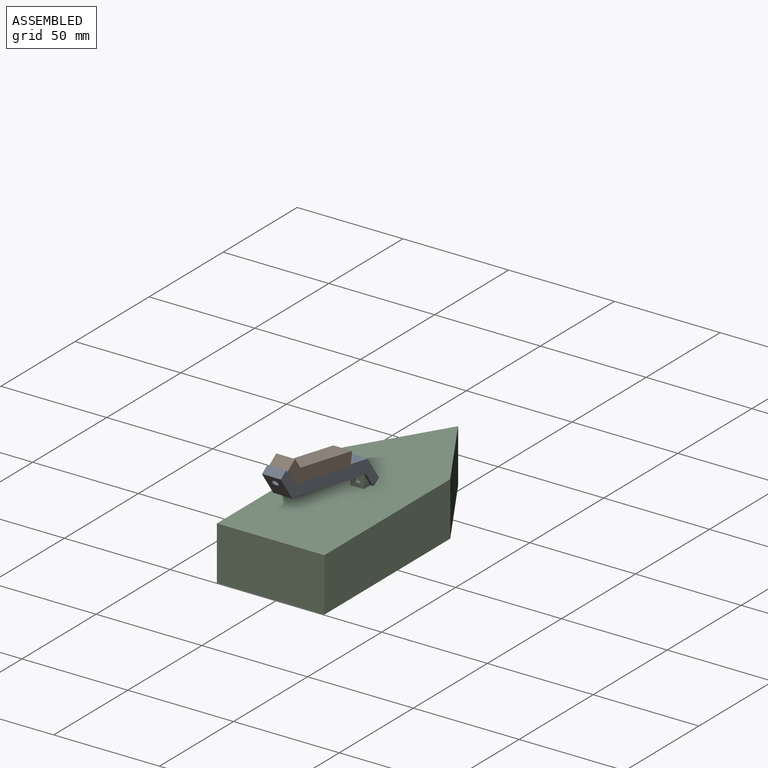
[diagram: assembled view]
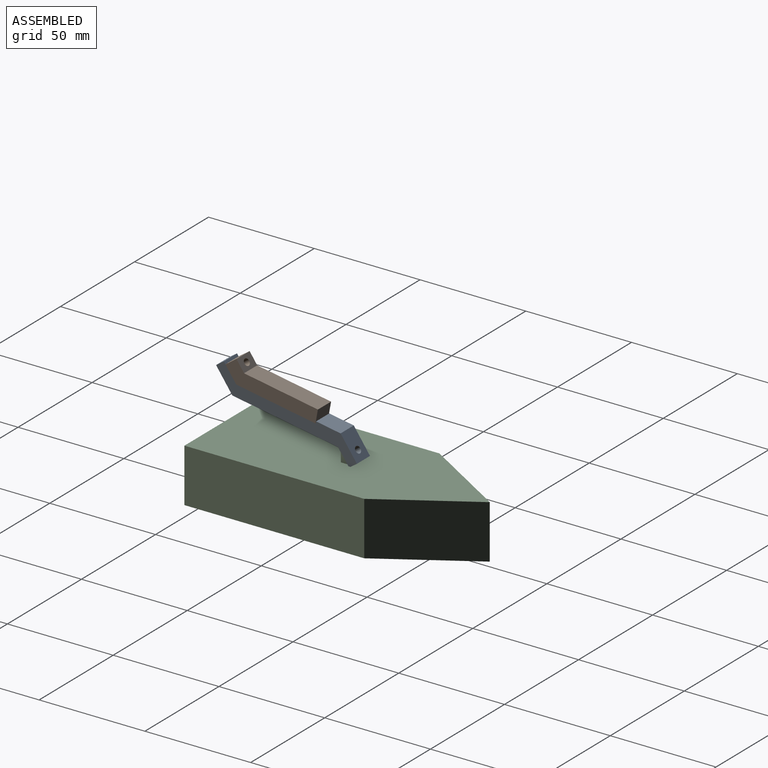
[diagram: assembled view, second angle]
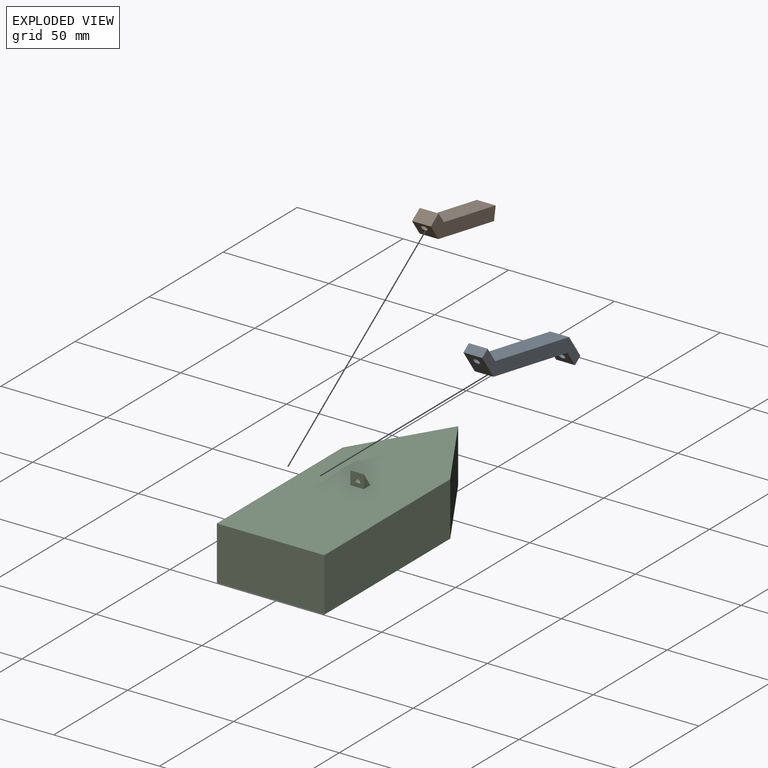
[diagram: exploded view]
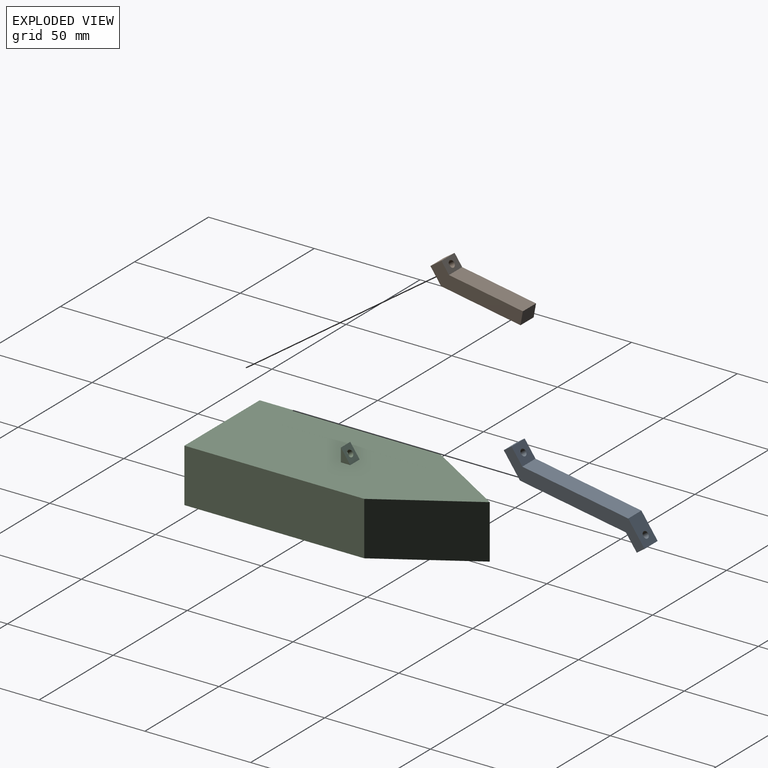
[diagram: exploded view, second angle]
ASSEMBLY  parts=3 mates=2
PART A: 12 faces, bbox 8.9x69.7x18.9 mm
  f0: plane 9.46x9.46mm, normal (0,-0.71,-0.71), area 111mm2, adj f1,f7,f8,f9,f11
  f1: plane 50.8x8.89mm, normal (0,0,-1), area 451.6mm2, adj f0,f2,f8,f9
  f2: plane 8.89x6.29mm, normal (0,-0.71,-0.71), area 71.1mm2, adj f1,f3,f8,f9,f10
  f3: plane 8.89x3.18mm, normal (0,0.71,-0.71), area 39.9mm2, adj f2,f4,f8,f9
  f4: plane 9.46x9.46mm, normal (0,0.71,0.71), area 111mm2, adj f3,f5,f8,f9,f10
  f5: plane 50.8x8.89mm, normal (0,0,1), area 451.6mm2, adj f4,f6,f8,f9
  f6: plane 8.89x6.29mm, normal (0,0.71,0.71), area 71.1mm2, adj f5,f7,f8,f9,f11
  f7: plane 8.89x3.18mm, normal (0,-0.71,0.71), area 39.9mm2, adj f0,f6,f8,f9
  f8: plane 69.72x18.92mm, normal (1,0,0), area 422.6mm2, adj f0,f1,f2,f3,f4,f5,f6,f7
  f9: plane 69.72x18.92mm, normal (-1,0,0), area 422.6mm2, adj f0,f1,f2,f3,f4,f5,f6,f7
  f10: cylinder r=1.59mm len=5.42mm, axis (0,-0.71,-0.71), area 44.8mm2, adj f2,f4
  f11: cylinder r=1.59mm len=5.42mm, axis (0,0.71,0.71), area 44.8mm2, adj f0,f6
PART B: 9 faces, bbox 8.9x44.4x10.8 mm
  f0: plane 38.1x8.89mm, normal (0,0,-1), area 338.7mm2, adj f1,f5,f6,f7
  f1: plane 8.89x6.35mm, normal (0,1,0), area 56.5mm2, adj f0,f2,f6,f7
  f2: plane 35.47x8.89mm, normal (0,0,1), area 315.3mm2, adj f1,f3,f6,f7
  f3: plane 8.89x4.43mm, normal (0,0.71,0.71), area 47.7mm2, adj f2,f4,f6,f7,f8
  f4: plane 8.89x4.49mm, normal (0,-0.71,0.71), area 56.5mm2, adj f3,f5,f6,f7
  f5: plane 8.89x6.29mm, normal (0,-0.71,-0.71), area 71.1mm2, adj f0,f4,f6,f7,f8
  f6: plane 44.39x10.78mm, normal (1,0,0), area 281.7mm2, adj f0,f1,f2,f3,f4,f5
  f7: plane 44.39x10.78mm, normal (-1,0,0), area 281.7mm2, adj f0,f1,f2,f3,f4,f5
  f8: cylinder r=1.59mm len=6.74mm, axis (0,0.71,0.71), area 63.3mm2, adj f3,f5
PART C: 13 faces, bbox 50.8x126.6x31.8 mm
  f0: plane 84.99x25.4mm, normal (-1,0,0), area 2158.8mm2, adj f1,f4,f5,f6
  f1: plane 50.8x25.4mm, normal (0,-1,0), area 1290.3mm2, adj f0,f2,f5,f6
  f2: plane 84.99x25.4mm, normal (1,0,0), area 2158.8mm2, adj f1,f3,f5,f6
  f3: plane 41.59x25.4mm, normal (0.85,0.52,0), area 1237.8mm2, adj f2,f4,f5,f6
  f4: plane 41.59x25.4mm, normal (-0.85,0.52,0), area 1237.8mm2, adj f0,f3,f5,f6
  f5: plane 126.58x50.8mm, normal (0,0,1), area 5345.6mm2, adj f0,f1,f2,f3,f4,f7,f8,f9
  f6: plane 126.58x50.8mm, normal (0,0,-1), area 5373.8mm2, adj f0,f1,f2,f3,f4
  f7: plane 6.35x6.35mm, normal (0,0.82,0.57), area 41.3mm2, adj f5,f8,f9,f10,f11
  f8: plane 6.35x6.35mm, normal (0,-1,0), area 36.4mm2, adj f5,f7,f9,f10,f11,f12
  f9: plane 6.35x4.45mm, normal (1,0,0), area 14.1mm2, adj f5,f7,f8
  f10: plane 6.35x4.45mm, normal (-1,0,0), area 14.1mm2, adj f5,f7,f8
  f11: cylinder r=1.59mm len=4.06mm, axis (0,0.82,0.57), area 22.6mm2, adj f7,f8,f12
  f12: plane 3.18x1.5mm, normal (0,0.82,0.57), area 4.7mm2, adj f8,f11
PLACE A rot(axis=(-1,0.01,0.01),10deg) t=(0.09,-45.5,15.64)mm
PLACE B rot(axis=(-1,0,0),10deg) t=(0.11,-43.64,20.81)mm
PLACE C t=(0,9.3,-25.4)mm
MATE revolute A.f10 <-> C.f11  axis (0,-0.82,-0.57) through (0,7.08,3.17)mm
MATE revolute B.f8 <-> A.f11  axis (0,-0.82,-0.57) through (0.11,-46.95,25.53)mm
